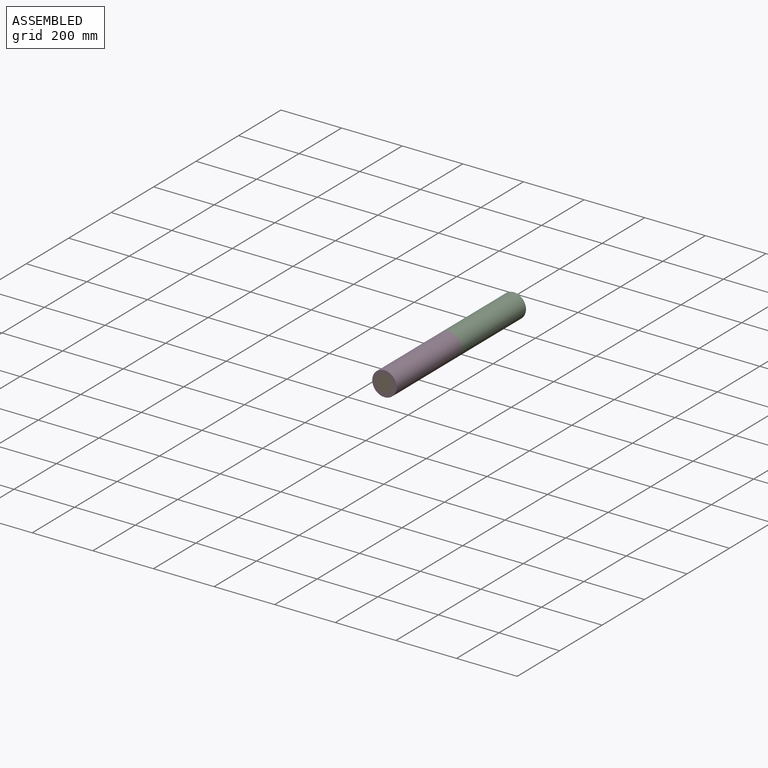
[diagram: assembled view]
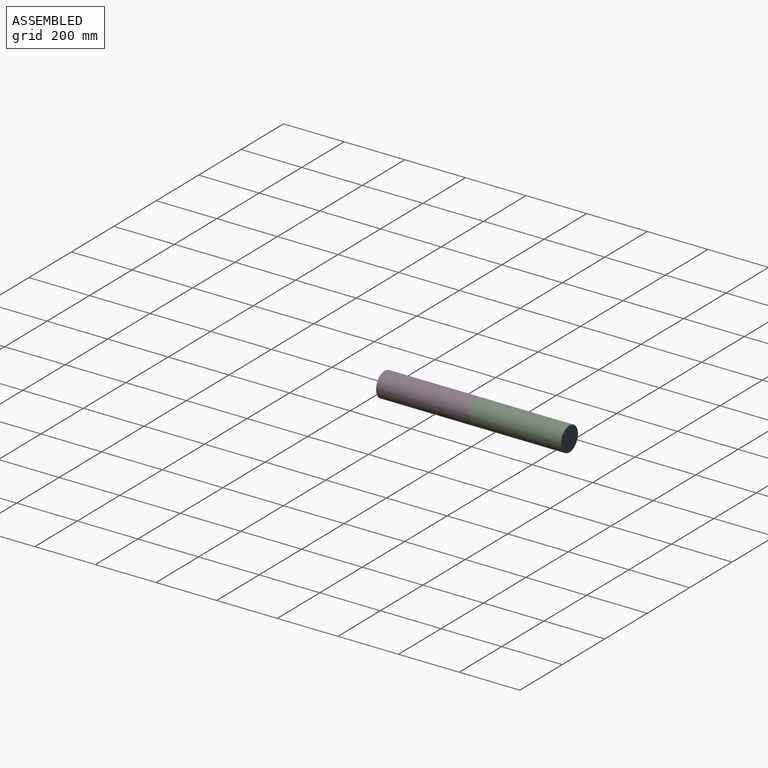
[diagram: assembled view, second angle]
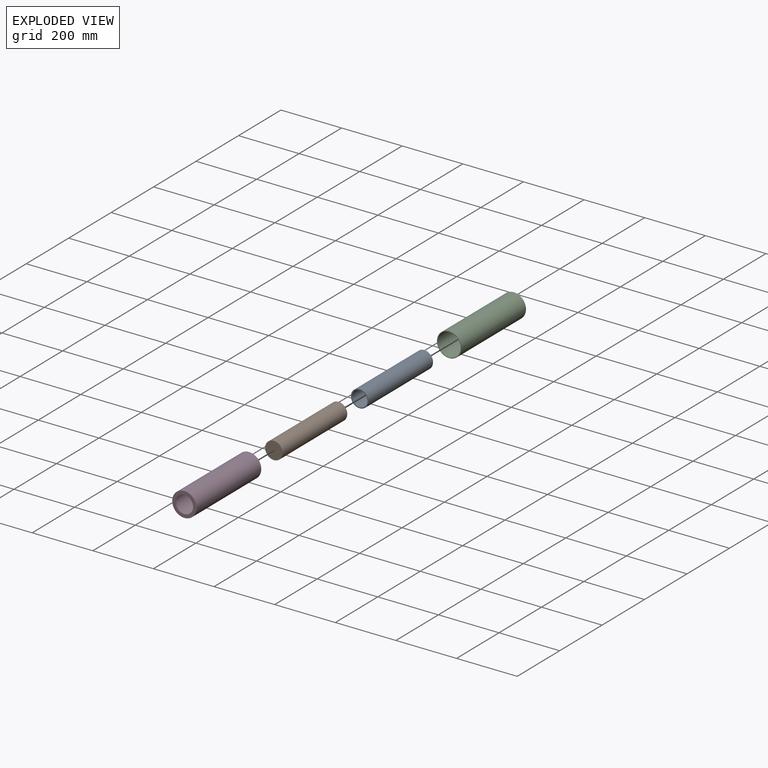
[diagram: exploded view]
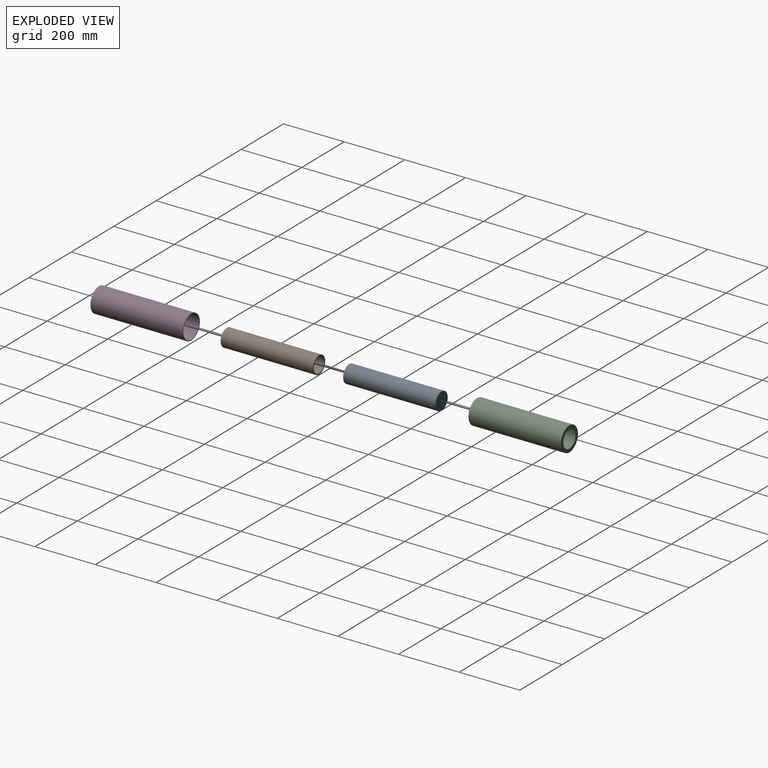
[diagram: exploded view, second angle]
ASSEMBLY  parts=4 mates=6
PART A: 5 faces, bbox 57.6x304.8x57.6 mm
  f0: cylinder r=25.4mm len=303.21mm, axis (0,1,0), area 48390.6mm2, adj f2,f4
  f1: cylinder r=28.8mm len=304.8mm, axis (0,1,0), area 55162.2mm2, adj f2,f3
  f2: plane 57.61x57.61mm, normal (0,-1,0), area 579.6mm2, adj f0,f1
  f3: plane 57.61x57.61mm, normal (0,1,0), area 2606.4mm2, adj f1
  f4: plane 50.8x50.8mm, normal (0,-1,0), area 2026.8mm2, adj f0
PART B: same geometry as A
PART C: 6 faces, bbox 80.4x304.8x80.4 mm
  f0: cylinder r=38.1mm len=303.21mm, axis (0,1,0), area 72585.8mm2, adj f2,f5
  f1: cylinder r=40.21mm len=304.8mm, axis (0,1,0), area 77003.3mm2, adj f2,f3
  f2: plane 80.42x80.42mm, normal (0,-1,0), area 518.6mm2, adj f0,f1
  f3: plane 80.42x80.42mm, normal (0,1,0), area 2472.6mm2, adj f1,f4
  f4: cylinder r=28.8mm len=57.61mm, axis (0,1,0), area 287.3mm2, adj f3,f5
  f5: plane 76.2x76.2mm, normal (0,-1,0), area 1954mm2, adj f0,f4
PART D: same geometry as C
PLACE A t=(-105.95,49.36,-62.63)mm fixed
PLACE B rot(axis=(1,0,0),180deg) t=(-105.95,-560.24,-62.63)mm
PLACE C t=(-105.95,49.36,-62.63)mm
PLACE D rot(axis=(0,0,1),180deg) t=(-105.95,-560.24,-62.63)mm
MATE planar D.f0 <-> C.f0  axis (0,1,0) through (-105.95,-255.44,-62.63)mm
MATE planar A.f0 <-> C.f1  axis (0,1,0) through (-105.95,49.36,-62.63)mm
MATE cylindrical C.f1 <-> D.f1  axis (0,1,0) through (-105.95,-103.04,-62.63)mm
MATE cylindrical B.f0 <-> A.f0  axis (0,-1,0) through (-105.95,-407.84,-62.63)mm
MATE planar B.f0 <-> A.f0  axis (0,1,0) through (-105.95,-255.44,-62.63)mm
MATE cylindrical A.f0 <-> D.f0  axis (0,1,0) through (-105.95,-103.04,-62.63)mm
